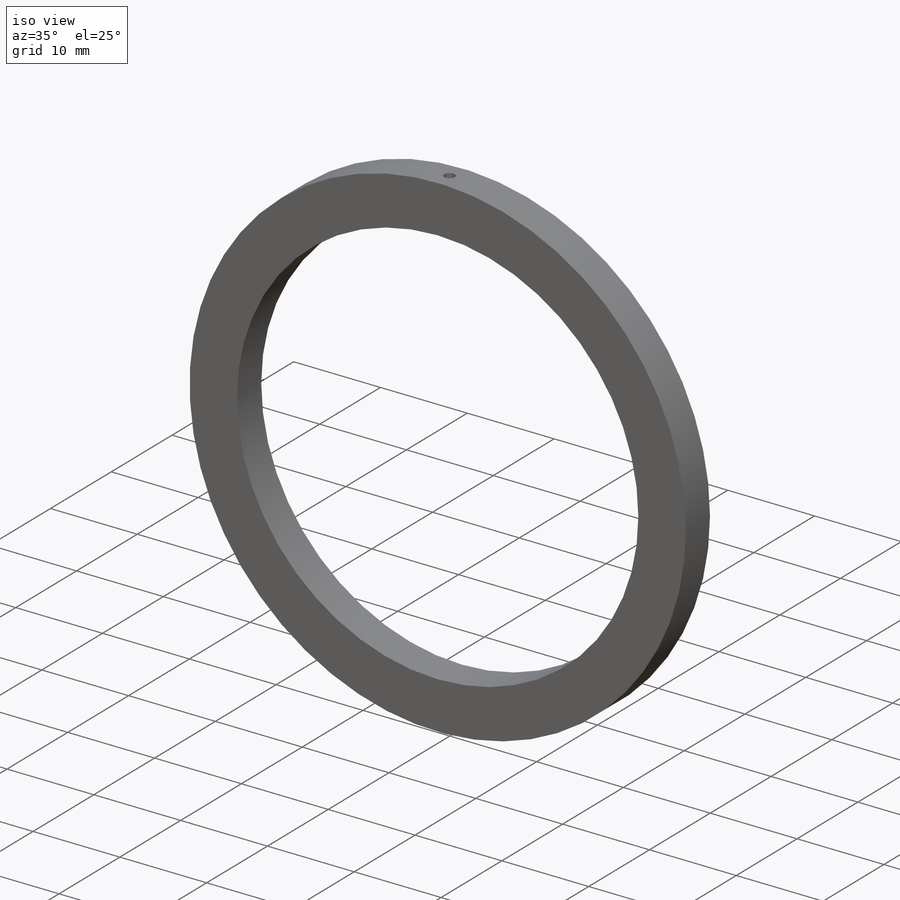
[diagram: iso view]
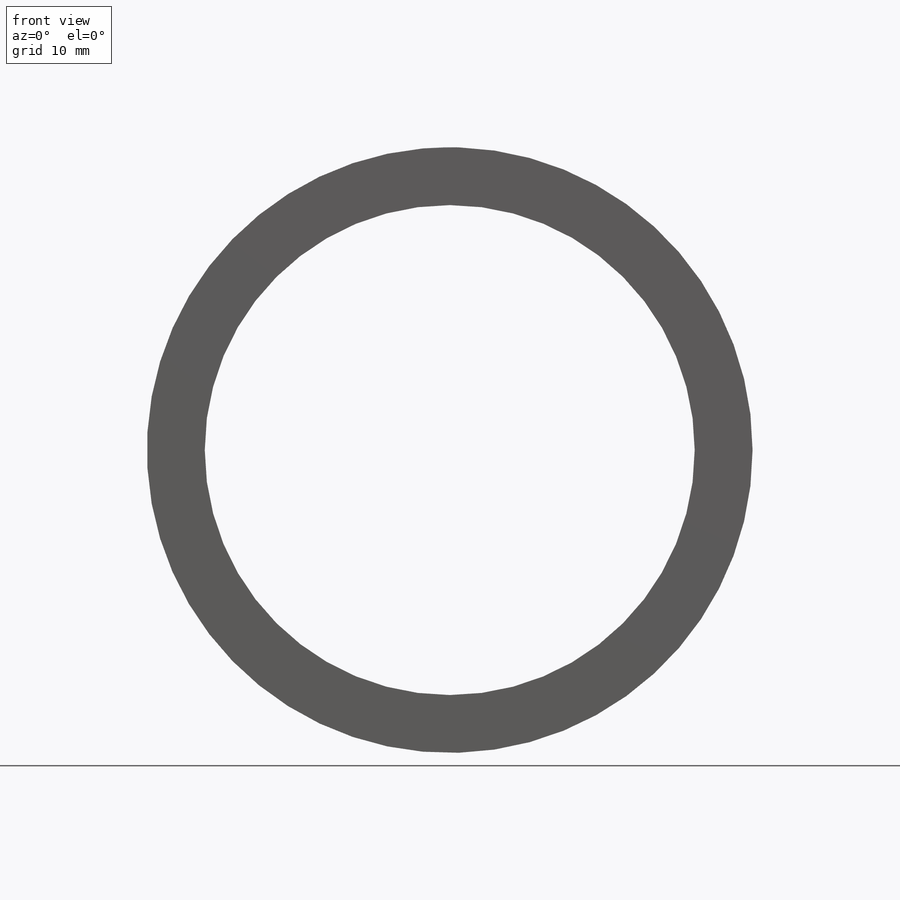
[diagram: front view]
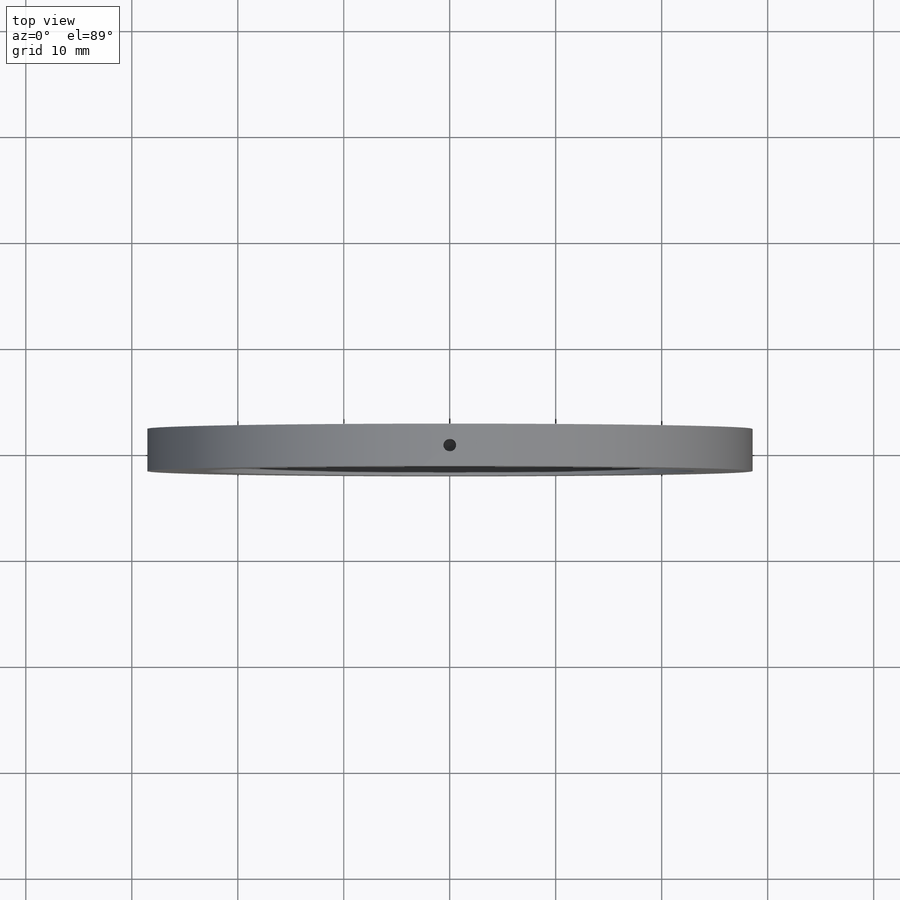
[diagram: top view]
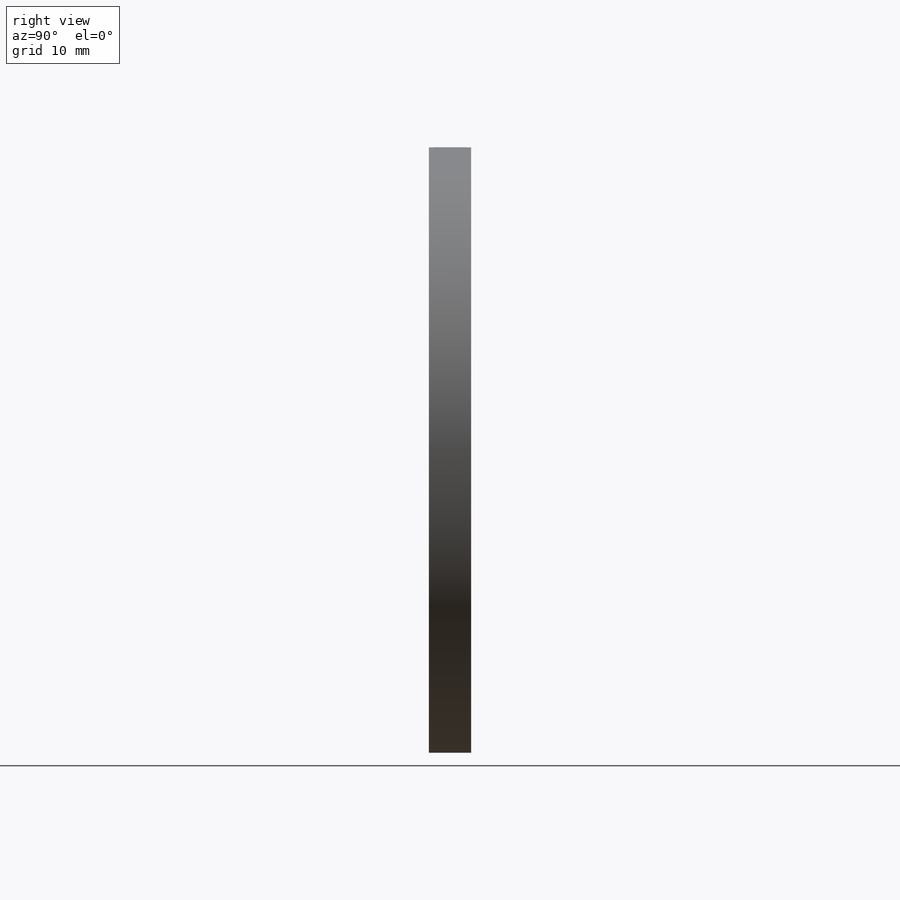
[diagram: right view]
SOLIDWORKS PART (.sldprt)
format: sldprt  version: not decoded by parser v0  size: 173,568 bytes
history: native  units: mm
features: sketch x4, material x1, extrude x1, cut_extrude x1, mirror x1, hole x1 (+13 scaffold rows collapsed)
feature tree (22):
  scaffold x13  (default folders/planes/origin — collapsed)
  material  "Material <not specified>"
  sketch  "Sketch1"  dims[D1=57.15mm D2=9.525mm]
  extrude  "Boss-Extrude1"  Depth=1.9939mm
  sketch  "Sketch2"  dims[D1=46.228mm D2=48.768mm]
  cut_extrude  "Cut-Extrude1"  Depth=0.8128mm
  mirror  "Mirror1"
  hole  "#0-80 Tapped Hole1"  Diameter=1.19126mm Depth=4.064mm
  sketch  "3DSketch2"
  sketch  "Sketch3"  dims[hole-wizard template sketch: 47 standard entries collapsed; hole parameters kept: c15.Tap Drill Depth=4.064mm c15.D3=~14.816244mm c15.Drill Angle=118.0deg]
decode coverage: 6 of 8 modeling features carry decoded parameters
note: ~ marks probable driven/reference dimensions
note: suppression state not decoded; provenance and decode notes live in map.json
